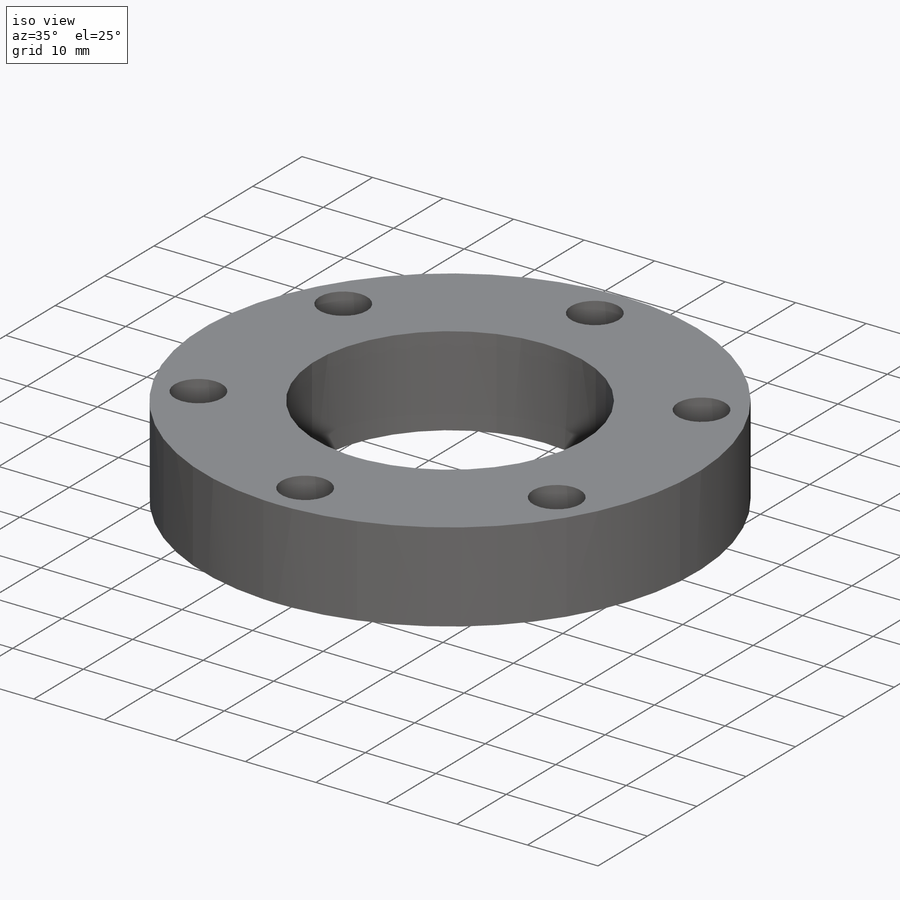
[diagram: iso view]
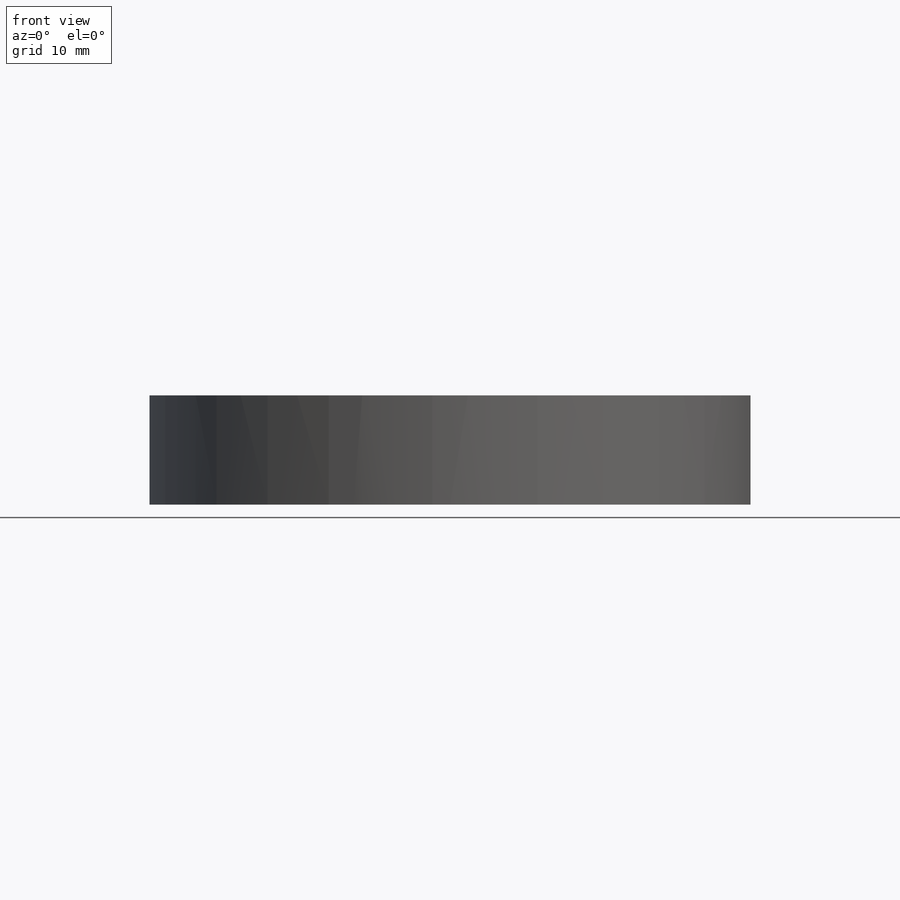
[diagram: front view]
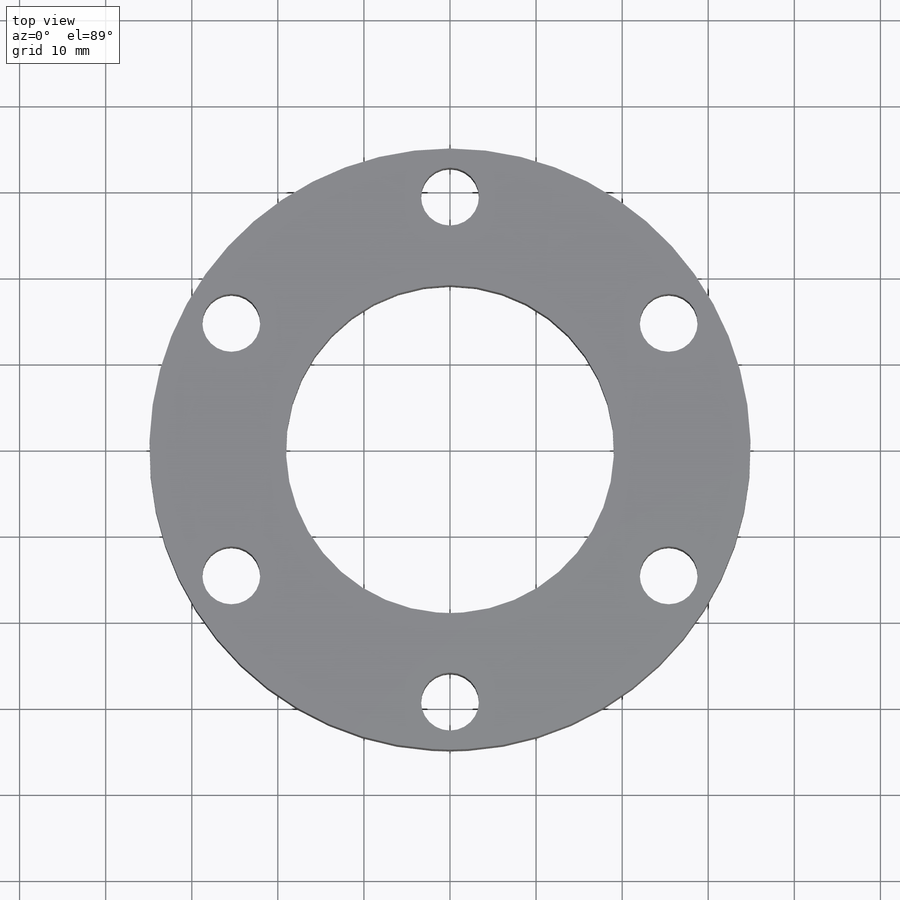
[diagram: top view]
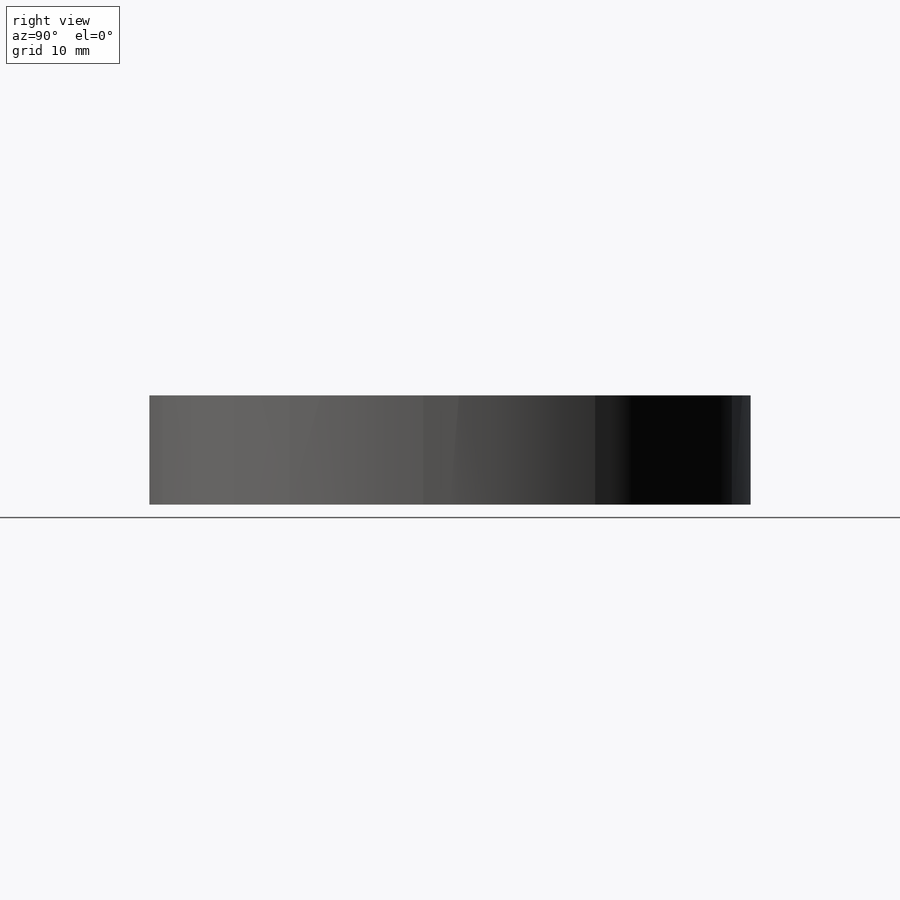
[diagram: right view]
SOLIDWORKS PART (.sldprt)
format: sldprt  version: not decoded by parser v0  size: 105,984 bytes
history: native  units: mm
features: sketch x5, cut_extrude x2, material x1, extrude x1, pattern_circular x1, plane x1 (+11 scaffold rows collapsed)
feature tree (22):
  scaffold x11  (default folders/planes/origin — collapsed)
  material  "Material <not specified>"
  sketch  "Sketch1"  dims[D1=69.85mm]
  extrude  "Extrude1"  Depth=12.7mm
  sketch  "Sketch2"  dims[D1=38.1mm]
  cut_extrude  "Cut-Extrude1"  [1 undecoded]
  sketch  "Sketch3"  dims[D1=6.731mm D2=29.337mm]
  cut_extrude  "Cut-Extrude2"  [1 undecoded]
  pattern_circular  "CirPattern1"  Count=6 Angle=360deg
  sketch  "Sketch4"
  plane  "Plane1"  Offset=0mm
  sketch  "Sketch5"  dims[D1=9.525mm]
decode coverage: 6 of 9 modeling features carry decoded parameters
note: 2 parameter values undecoded
note: suppression state not decoded; provenance and decode notes live in map.json
